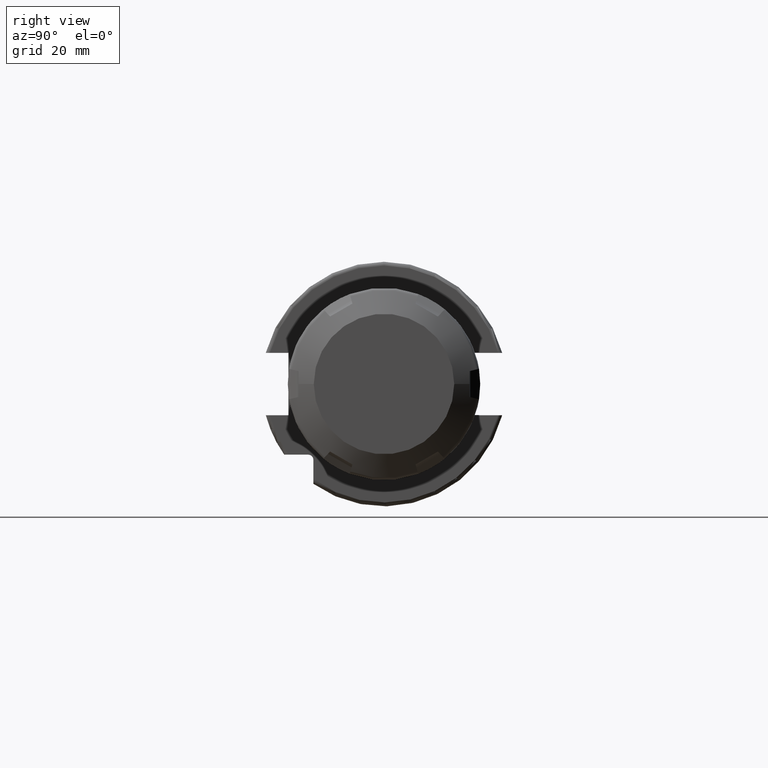
[diagram: clean part render]
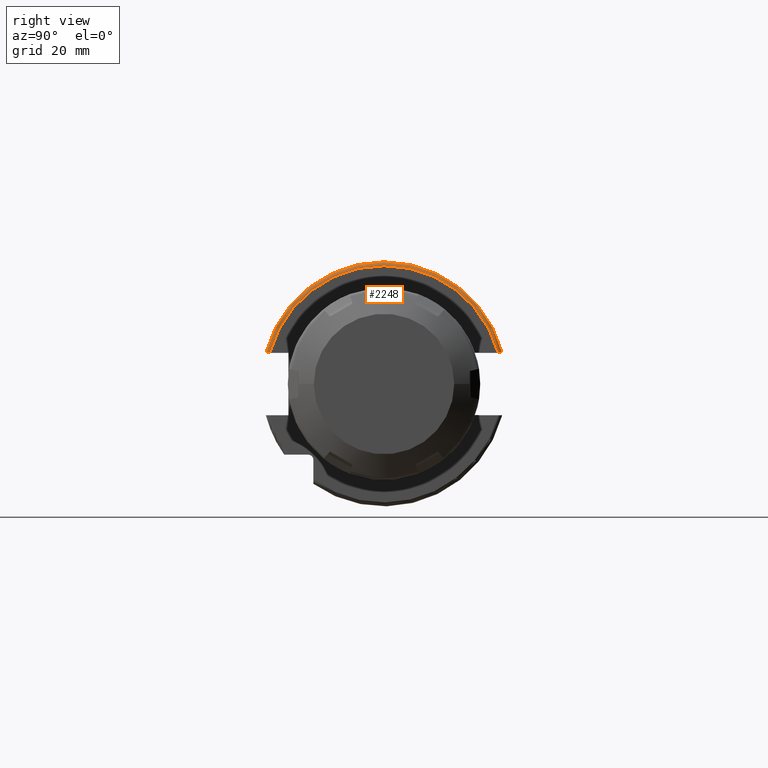
[diagram: same view with one face highlighted and labeled with its STEP entity id]
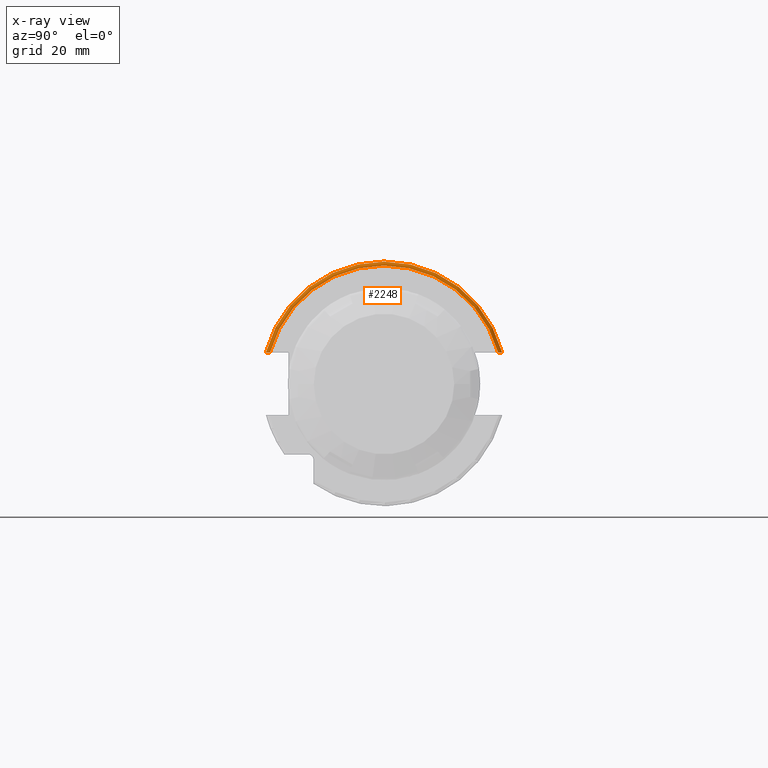
[diagram: x-ray of the same camera — body ghosted, the highlighted face saturated]
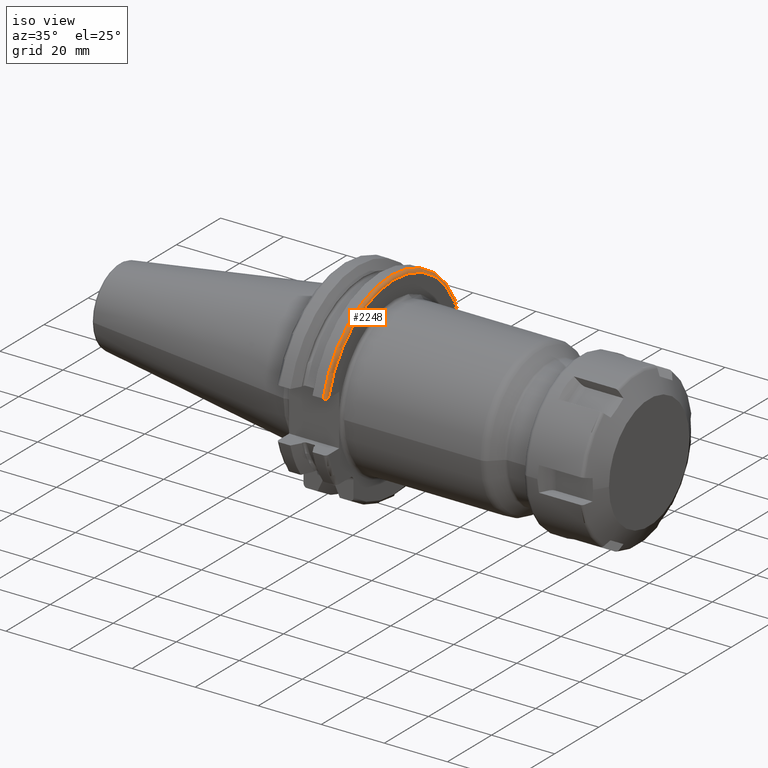
[diagram: same view with one face highlighted and labeled with its STEP entity id]
A machine part, right view. The second image highlights one B-rep face of the part: STEP entity #2248.
The next image is the same camera in x-ray: the body ghosted, the highlighted face saturated — about 0% of this face is hidden behind the body in this view.
A second angle (iso view) of the same face is appended — the face is thin or edge-on in the first view.
In plain terms, the highlighted toroidal blend (fillet) surface has major radius 30.7625 mm and minor (blend) radius 1 mm.
Its self-contained STEP definition (entity closure, byte-faithful):
#452=CARTESIAN_POINT('',(1.805E1,0.E0,0.E0));
#453=DIRECTION('',(1.E0,0.E0,0.E0));
#454=DIRECTION('',(0.E0,9.669363825036E-1,2.550177095632E-1));
#455=AXIS2_PLACEMENT_3D('',#452,#453,#454);
#484=CARTESIAN_POINT('',(1.905E1,2.967695075728E1,8.1E0));
#485=CARTESIAN_POINT('',(1.905E1,2.975534544469E1,8.1E0));
#486=CARTESIAN_POINT('',(1.903327439626E1,2.990764711142E1,8.1E0));
#487=CARTESIAN_POINT('',(1.895996891946E1,3.012703601742E1,8.1E0));
#488=CARTESIAN_POINT('',(1.884140031799E1,3.032417656220E1,8.1E0));
#489=CARTESIAN_POINT('',(1.868299781019E1,3.048994814949E1,8.1E0));
#490=CARTESIAN_POINT('',(1.849140267654E1,3.061604720054E1,8.1E0));
#491=CARTESIAN_POINT('',(1.827601722220E1,3.069451682863E1,8.1E0));
#492=CARTESIAN_POINT('',(1.812684136073E1,3.071231684927E1,8.1E0));
#493=CARTESIAN_POINT('',(1.805E1,3.071231684927E1,8.1E0));
#495=CARTESIAN_POINT('',(1.905E1,0.E0,0.E0));
#496=DIRECTION('',(1.E0,0.E0,0.E0));
#497=DIRECTION('',(0.E0,9.647119303464E-1,2.633075985372E-1));
#498=AXIS2_PLACEMENT_3D('',#495,#496,#497);
#500=CARTESIAN_POINT('',(1.805E1,-3.071231684927E1,8.1E0));
#501=CARTESIAN_POINT('',(1.812702529647E1,-3.071231684927E1,8.1E0));
#502=CARTESIAN_POINT('',(1.827656518037E1,-3.069444719907E1,8.1E0));
#503=CARTESIAN_POINT('',(1.849273698584E1,-3.061544862934E1,8.1E0));
#504=CARTESIAN_POINT('',(1.868460186607E1,-3.048863686818E1,8.1E0));
#505=CARTESIAN_POINT('',(1.884263679922E1,-3.032251203229E1,8.1E0));
#506=CARTESIAN_POINT('',(1.896052984725E1,-3.012566774399E1,8.1E0));
#507=CARTESIAN_POINT('',(1.903334281973E1,-2.990707436768E1,8.1E0));
#508=CARTESIAN_POINT('',(1.905E1,-2.975515277820E1,8.1E0));
#509=CARTESIAN_POINT('',(1.905E1,-2.967695075728E1,8.1E0));
#1453=CARTESIAN_POINT('',(1.905E1,-2.967695075728E1,8.1E0));
#1455=VERTEX_POINT('',#1453);
#1459=CARTESIAN_POINT('',(1.805E1,3.071231684927E1,8.1E0));
#1460=VERTEX_POINT('',#1459);
#1463=CARTESIAN_POINT('',(1.805E1,-3.071231684927E1,8.1E0));
#1464=VERTEX_POINT('',#1463);
#1494=VERTEX_POINT('',#484);
#2237=CARTESIAN_POINT('',(1.805E1,0.E0,0.E0));
#2238=DIRECTION('',(1.E0,0.E0,0.E0));
#2239=DIRECTION('',(0.E0,-1.E0,0.E0));
#2240=AXIS2_PLACEMENT_3D('',#2237,#2238,#2239);
#2241=TOROIDAL_SURFACE('',#2240,3.07625E1,1.E0);
#2242=ORIENTED_EDGE('',*,*,#1786,.F.);
#2243=ORIENTED_EDGE('',*,*,#1952,.T.);
#2244=ORIENTED_EDGE('',*,*,#2224,.F.);
#2245=ORIENTED_EDGE('',*,*,#2191,.F.);
#2246=EDGE_LOOP('',(#2242,#2243,#2244,#2245));
#2247=FACE_OUTER_BOUND('',#2246,.F.);
#2248=ADVANCED_FACE('',(#2247),#2241,.T.);
#456=CIRCLE('',#455,3.17625E1);
#494=B_SPLINE_CURVE_WITH_KNOTS('',3,(#484,#485,#486,#487,#488,#489,#490,#491,
#492,#493),.UNSPECIFIED.,.F.,.F.,(4,1,1,1,1,1,1,4),(0.E0,1.428571428571E-1,
2.857142857143E-1,4.285714285714E-1,5.714285714286E-1,7.142857142857E-1,
8.571428571429E-1,1.E0),.UNSPECIFIED.);
#499=CIRCLE('',#498,3.07625E1);
#510=B_SPLINE_CURVE_WITH_KNOTS('',3,(#500,#501,#502,#503,#504,#505,#506,#507,
#508,#509),.UNSPECIFIED.,.F.,.F.,(4,1,1,1,1,1,1,4),(0.E0,1.428571428571E-1,
2.857142857143E-1,4.285714285714E-1,5.714285714286E-1,7.142857142857E-1,
8.571428571429E-1,1.E0),.UNSPECIFIED.);
#1786=EDGE_CURVE('',#1494,#1460,#494,.T.);
#1952=EDGE_CURVE('',#1494,#1455,#499,.T.);
#2191=EDGE_CURVE('',#1460,#1464,#456,.T.);
#2224=EDGE_CURVE('',#1464,#1455,#510,.T.);